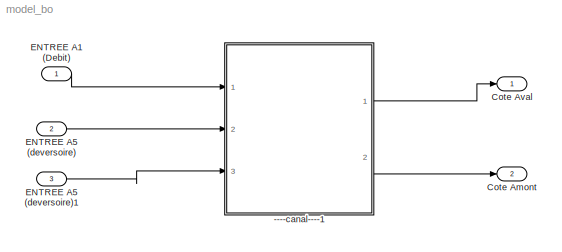
MODEL model_bo
KIND model
CONFIG AbsTol = auto
CONFIG FixedStep = auto
CONFIG MaxStep = auto
CONFIG MinStep = auto
CONFIG RelTol = 1e-3
CONFIG Solver = ode45
CONFIG SolverMode = Auto
CONFIG StartTime = 0.0
CONFIG StopTime = 10.0
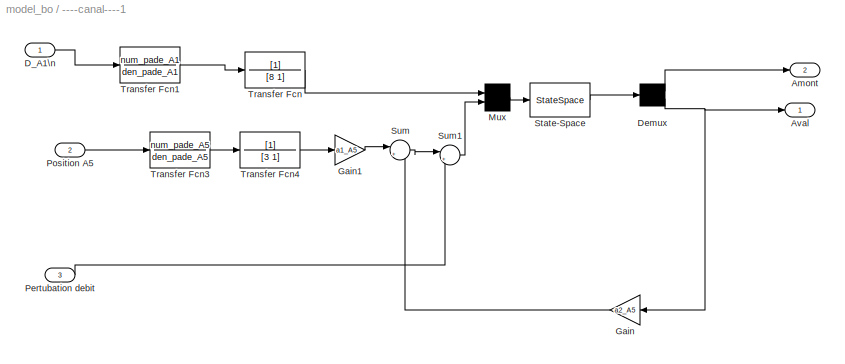
BLOCK [SubSystem] ----canal----1
  Ports = [3, 2]
  RTWFcnNameOpts = Auto
  RTWFileNameOpts = Auto
  RTWSystemCode = Auto
  ShowPortLabels = on
  TreatAsAtomicUnit = off
BLOCK [Outport] ----canal----1/Amont
  InitialOutput = []
  OutputWhenDisabled = held
  Port = 2
BLOCK [Outport] ----canal----1/Aval
  InitialOutput = []
  OutputWhenDisabled = held
  Port = 1
BLOCK [Inport] ----canal----1/D_A1\n
  Interpolate = on
  LatchInput = off
  Port = 1
BLOCK [Demux] ----canal----1/Demux
  BusSelectionMode = off
  Outputs = 2
  Ports = [1, 2]
BLOCK [Gain] ----canal----1/Gain
  Gain = a2_A5
  Multiplication = Element-wise(K.*u)
  SaturateOnIntegerOverflow = on
BLOCK [Gain] ----canal----1/Gain1
  Gain = a1_A5
  Multiplication = Element-wise(K.*u)
  SaturateOnIntegerOverflow = on
BLOCK [Mux] ----canal----1/Mux
  DisplayOption = none
  Inputs = 2
  Ports = [2, 1]
BLOCK [Inport] ----canal----1/Pertubation debit
  Interpolate = on
  LatchInput = off
  Port = 3
BLOCK [Inport] ----canal----1/Position A5
  Interpolate = on
  LatchInput = off
  Port = 2
BLOCK [StateSpace] ----canal----1/State-Space
  A = A_B1
  AbsoluteTolerance = auto
  B = B_B1
  C = C_B1
  D = D_B1
  Realization = auto
  X0 = 0
BLOCK [Sum] ----canal----1/Sum
  IconShape = round
  Inputs = |++
  Ports = [2, 1]
  SaturateOnIntegerOverflow = on
BLOCK [Sum] ----canal----1/Sum1
  IconShape = round
  Inputs = |++
  Ports = [2, 1]
  SaturateOnIntegerOverflow = on
BLOCK [TransferFcn] ----canal----1/Transfer Fcn
  AbsoluteTolerance = auto
  Denominator = [8 1]
  Numerator = [1]
  Realization = auto
BLOCK [TransferFcn] ----canal----1/Transfer Fcn1
  AbsoluteTolerance = auto
  Denominator = den_pade_A1
  Numerator = num_pade_A1
  Realization = auto
BLOCK [TransferFcn] ----canal----1/Transfer Fcn3
  AbsoluteTolerance = auto
  Denominator = den_pade_A5
  Numerator = num_pade_A5
  Realization = auto
BLOCK [TransferFcn] ----canal----1/Transfer Fcn4
  AbsoluteTolerance = auto
  Denominator = [3 1]
  Numerator = [1]
  Realization = auto
BLOCK [Outport] Cote Amont 
  InitialOutput = []
  OutputWhenDisabled = held
  Port = 2
BLOCK [Outport] Cote Aval
  InitialOutput = []
  OutputWhenDisabled = held
  Port = 1
BLOCK [Inport] ENTREE A1   (Debit)
  Interpolate = on
  LatchInput = off
  Port = 1
BLOCK [Inport] ENTREE A5 (deversoire)
  Interpolate = on
  LatchInput = off
  Port = 2
BLOCK [Inport] ENTREE A5 (deversoire)1
  Interpolate = on
  LatchInput = off
  Port = 3
LINE ----canal----1/D_A1\n:1 -> ----canal----1/Transfer Fcn1:1
LINE ----canal----1/Demux:1 -> ----canal----1/Amont:1
NET ----canal----1/Demux:2 -> ----canal----1/Aval:1, ----canal----1/Gain:1
LINE ----canal----1/Gain1:1 -> ----canal----1/Sum:1
LINE ----canal----1/Gain:1 -> ----canal----1/Sum:2
LINE ----canal----1/Mux:1 -> ----canal----1/State-Space:1
LINE ----canal----1/Pertubation debit:1 -> ----canal----1/Sum1:2
LINE ----canal----1/Position A5:1 -> ----canal----1/Transfer Fcn3:1
LINE ----canal----1/State-Space:1 -> ----canal----1/Demux:1
LINE ----canal----1/Sum1:1 -> ----canal----1/Mux:2
LINE ----canal----1/Sum:1 -> ----canal----1/Sum1:1
LINE ----canal----1/Transfer Fcn1:1 -> ----canal----1/Transfer Fcn:1
LINE ----canal----1/Transfer Fcn3:1 -> ----canal----1/Transfer Fcn4:1
LINE ----canal----1/Transfer Fcn4:1 -> ----canal----1/Gain1:1
LINE ----canal----1/Transfer Fcn:1 -> ----canal----1/Mux:1
LINE ----canal----1:1 -> Cote Aval:1
LINE ----canal----1:2 -> Cote Amont :1
LINE ENTREE A1   (Debit):1 -> ----canal----1:1
LINE ENTREE A5 (deversoire)1:1 -> ----canal----1:3
LINE ENTREE A5 (deversoire):1 -> ----canal----1:2
note: NET lines group one-source signal fan-out (src -> all destinations, sorted); 1:1 wires keep LINE
